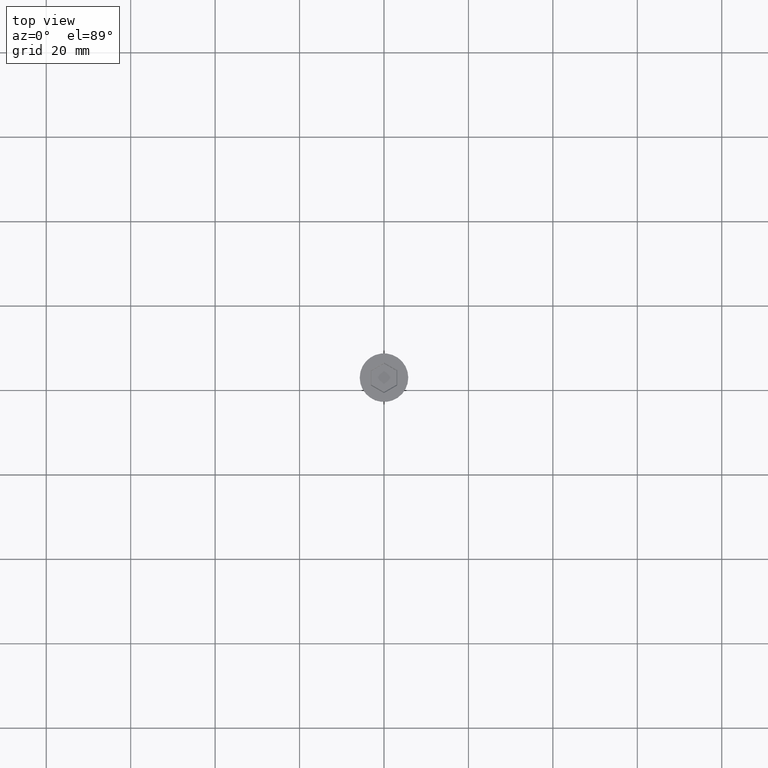
[diagram: clean part render]
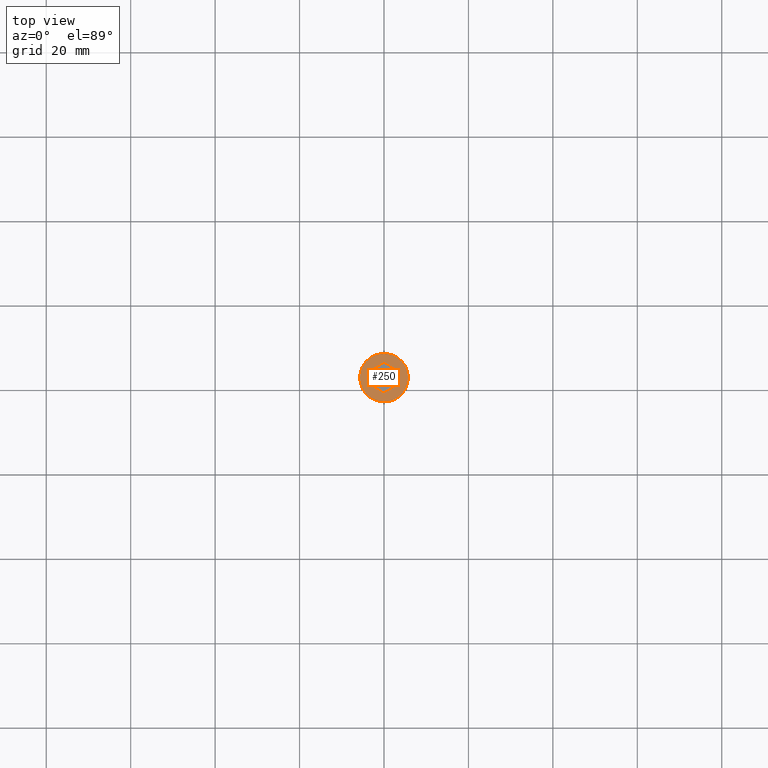
[diagram: same view with one face highlighted and labeled with its STEP entity id]
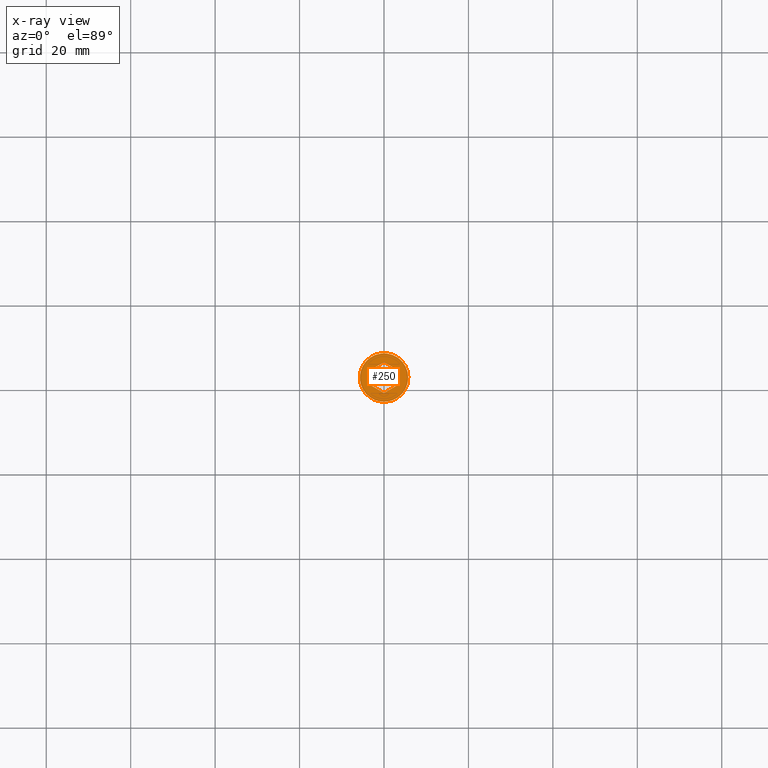
[diagram: x-ray of the same camera — body ghosted, the highlighted face saturated]
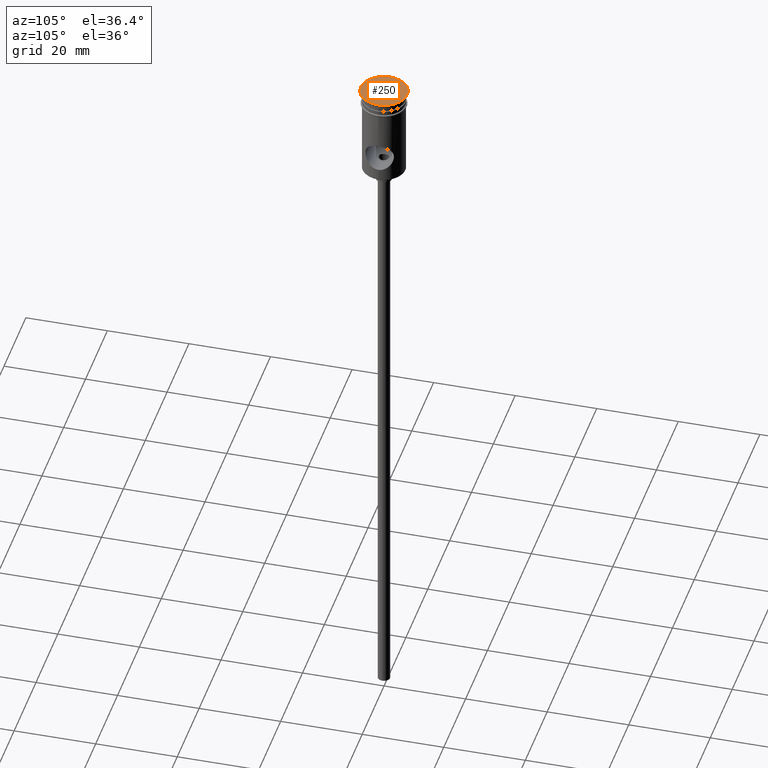
[diagram: same view with one face highlighted and labeled with its STEP entity id]
A machine part, top view. The second image highlights one B-rep face of the part: STEP entity #250.
The next image is the same camera in x-ray: the body ghosted, the highlighted face saturated — about 0% of this face is hidden behind the body in this view.
A second angle (auxiliary view) of the same face is appended — the face is thin or edge-on in the first view.
In plain terms, the highlighted planar face has unit normal (0, -0, 1).
Its self-contained STEP definition (entity closure, byte-faithful):
#4 = VERTEX_POINT ( 'NONE', #1234 ) ;
#37 = DIRECTION ( 'NONE',  ( -0.000000000000000000, -0.000000000000000000, 1.000000000000000000 ) ) ;
#47 = VECTOR ( 'NONE', #1155, 1000.000000000000000 ) ;
#62 = ORIENTED_EDGE ( 'NONE', *, *, #585, .T. ) ;
#70 = FACE_OUTER_BOUND ( 'NONE', #452, .T. ) ;
#81 = LINE ( 'NONE', #624, #674 ) ;
#106 = VERTEX_POINT ( 'NONE', #619 ) ;
#142 = CIRCLE ( 'NONE', #1289, 5.750000000000000000 ) ;
#209 = CARTESIAN_POINT ( 'NONE',  ( -3.163467028841980443E-16, 3.637306695894617192, 0.000000000000000000 ) ) ;
#250 = ADVANCED_FACE ( 'NONE', ( #1319, #70 ), #308, .T. ) ;
#259 = LINE ( 'NONE', #937, #1361 ) ;
#293 = DIRECTION ( 'NONE',  ( 0.000000000000000000, -0.000000000000000000, 1.000000000000000000 ) ) ;
#308 = PLANE ( 'NONE',  #414 ) ;
#322 = ORIENTED_EDGE ( 'NONE', *, *, #1288, .T. ) ;
#328 = VERTEX_POINT ( 'NONE', #209 ) ;
#329 = VECTOR ( 'NONE', #1267, 1000.000000000000114 ) ;
#361 = CARTESIAN_POINT ( 'NONE',  ( -3.149999999999978595, 1.703183294109395840, 0.000000000000000000 ) ) ;
#391 = CARTESIAN_POINT ( 'NONE',  ( -5.750000000000000000, 7.041719095097280880E-16, 0.000000000000000000 ) ) ;
#396 = CIRCLE ( 'NONE', #730, 5.750000000000000000 ) ;
#399 = ORIENTED_EDGE ( 'NONE', *, *, #505, .T. ) ;
#411 = ORIENTED_EDGE ( 'NONE', *, *, #843, .T. ) ;
#414 = AXIS2_PLACEMENT_3D ( 'NONE', #1426, #293, #1203 ) ;
#417 = VECTOR ( 'NONE', #1216, 1000.000000000000114 ) ;
#423 = EDGE_CURVE ( 'NONE', #1240, #4, #142, .T. ) ;
#452 = EDGE_LOOP ( 'NONE', ( #1164, #1001 ) ) ;
#459 = VERTEX_POINT ( 'NONE', #913 ) ;
#485 = CARTESIAN_POINT ( 'NONE',  ( -3.149999999999978595, 1.818653347947308374, 0.000000000000000000 ) ) ;
#487 = CARTESIAN_POINT ( 'NONE',  ( -3.049999999999989608, -1.876388374866265085, 0.000000000000000000 ) ) ;
#505 = EDGE_CURVE ( 'NONE', #1320, #557, #1033, .T. ) ;
#544 = CARTESIAN_POINT ( 'NONE',  ( 0.000000000000000000, 0.000000000000000000, 0.000000000000000000 ) ) ;
#556 = DIRECTION ( 'NONE',  ( 1.000000000000000000, 0.000000000000000000, 0.000000000000000000 ) ) ;
#557 = VERTEX_POINT ( 'NONE', #603 ) ;
#585 = EDGE_CURVE ( 'NONE', #459, #1320, #81, .T. ) ;
#589 = VECTOR ( 'NONE', #856, 1000.000000000000000 ) ;
#603 = CARTESIAN_POINT ( 'NONE',  ( -3.149999999999978595, -1.818653347947308818, 0.000000000000000000 ) ) ;
#619 = CARTESIAN_POINT ( 'NONE',  ( 3.149999999999979039, 1.818653347947308596, 0.000000000000000000 ) ) ;
#624 = CARTESIAN_POINT ( 'NONE',  ( 0.09999999999998870903, -3.579571668975661591, 0.000000000000000000 ) ) ;
#674 = VECTOR ( 'NONE', #1182, 1000.000000000000000 ) ;
#730 = AXIS2_PLACEMENT_3D ( 'NONE', #1270, #37, #1036 ) ;
#743 = CARTESIAN_POINT ( 'NONE',  ( -5.257856505504653693E-16, -3.637306695894617636, 0.000000000000000000 ) ) ;
#765 = CARTESIAN_POINT ( 'NONE',  ( -0.09999999999998937517, 3.579571668975661147, 0.000000000000000000 ) ) ;
#804 = ORIENTED_EDGE ( 'NONE', *, *, #1185, .T. ) ;
#817 = EDGE_CURVE ( 'NONE', #4, #1240, #396, .T. ) ;
#843 = EDGE_CURVE ( 'NONE', #557, #1125, #1380, .T. ) ;
#849 = CARTESIAN_POINT ( 'NONE',  ( 3.049999999999990052, 1.876388374866264863, 0.000000000000000000 ) ) ;
#856 = DIRECTION ( 'NONE',  ( 0.8660254037844387076, -0.4999999999999998890, 0.000000000000000000 ) ) ;
#913 = CARTESIAN_POINT ( 'NONE',  ( 3.149999999999978151, -1.818653347947309262, 0.000000000000000000 ) ) ;
#914 = ORIENTED_EDGE ( 'NONE', *, *, #997, .T. ) ;
#931 = DIRECTION ( 'NONE',  ( -2.546295930062981593E-16, -1.000000000000000000, 0.000000000000000000 ) ) ;
#937 = CARTESIAN_POINT ( 'NONE',  ( 3.149999999999978151, -1.703183294109396284, 0.000000000000000000 ) ) ;
#997 = EDGE_CURVE ( 'NONE', #1125, #328, #1434, .T. ) ;
#1001 = ORIENTED_EDGE ( 'NONE', *, *, #423, .T. ) ;
#1027 = EDGE_LOOP ( 'NONE', ( #399, #411, #914, #322, #804, #62 ) ) ;
#1033 = LINE ( 'NONE', #487, #329 ) ;
#1036 = DIRECTION ( 'NONE',  ( 1.000000000000000000, 0.000000000000000000, 0.000000000000000000 ) ) ;
#1125 = VERTEX_POINT ( 'NONE', #485 ) ;
#1155 = DIRECTION ( 'NONE',  ( 0.000000000000000000, 1.000000000000000000, 0.000000000000000000 ) ) ;
#1164 = ORIENTED_EDGE ( 'NONE', *, *, #817, .T. ) ;
#1182 = DIRECTION ( 'NONE',  ( -0.8660254037844387076, -0.4999999999999998890, 0.000000000000000000 ) ) ;
#1185 = EDGE_CURVE ( 'NONE', #106, #459, #259, .T. ) ;
#1199 = LINE ( 'NONE', #849, #589 ) ;
#1203 = DIRECTION ( 'NONE',  ( 1.000000000000000000, 0.000000000000000000, 0.000000000000000000 ) ) ;
#1216 = DIRECTION ( 'NONE',  ( 0.8660254037844385966, 0.5000000000000001110, 0.000000000000000000 ) ) ;
#1234 = CARTESIAN_POINT ( 'NONE',  ( 5.750000000000000000, 0.000000000000000000, 0.000000000000000000 ) ) ;
#1240 = VERTEX_POINT ( 'NONE', #391 ) ;
#1248 = DIRECTION ( 'NONE',  ( -0.000000000000000000, -0.000000000000000000, 1.000000000000000000 ) ) ;
#1267 = DIRECTION ( 'NONE',  ( -0.8660254037844385966, 0.5000000000000001110, 0.000000000000000000 ) ) ;
#1270 = CARTESIAN_POINT ( 'NONE',  ( 0.000000000000000000, 0.000000000000000000, 0.000000000000000000 ) ) ;
#1288 = EDGE_CURVE ( 'NONE', #328, #106, #1199, .T. ) ;
#1289 = AXIS2_PLACEMENT_3D ( 'NONE', #544, #1248, #556 ) ;
#1319 = FACE_BOUND ( 'NONE', #1027, .T. ) ;
#1320 = VERTEX_POINT ( 'NONE', #743 ) ;
#1361 = VECTOR ( 'NONE', #931, 1000.000000000000000 ) ;
#1380 = LINE ( 'NONE', #361, #47 ) ;
#1426 = CARTESIAN_POINT ( 'NONE',  ( 0.000000000000000000, 0.000000000000000000, 0.000000000000000000 ) ) ;
#1434 = LINE ( 'NONE', #765, #417 ) ;